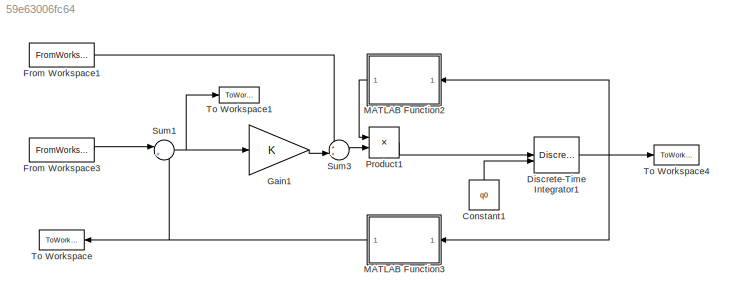
MODEL slx_59e63006fc64
KIND model
CONFIG AbsTol = 1e-6
CONFIG EnableMultiTasking = off
CONFIG FixedStep = 0.001
CONFIG MaxStep = 0.001
CONFIG MinStep = auto
CONFIG RelTol = 1e-6
CONFIG SampleTimeConstraint = Unconstrained
CONFIG SolverName = ode1
CONFIG StartTime = 0.0
CONFIG StopTime = 50
BLOCK [Constant] Constant1
  NameLocation = right
  Value = q0
BLOCK [DiscreteIntegrator] Discrete-Time Integrator1
  ICPrevOutput = DiscIntNeverNeededParam
  ICPrevScaledInput = DiscIntNeverNeededParam
  InitialCondition = q0
  InitialConditionSetting = Auto
  InitialConditionSource = external
  SampleTime = Tc
BLOCK [FromWorkspace] From Workspace1
  SampleTime = Tc
  VariableName = xddot
BLOCK [FromWorkspace] From Workspace3
  SampleTime = Tc
  VariableName = xd
BLOCK [Gain] Gain1
  Gain = K
  Multiplication = Matrix(K*u) (u vector)
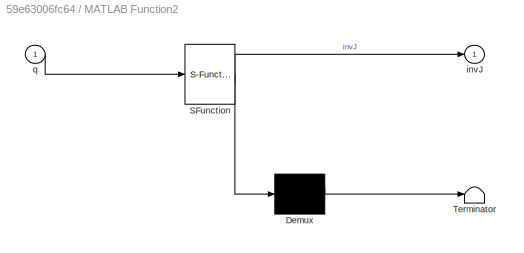
BLOCK [SubSystem] MATLAB Function2
  ErrorFcn = Stateflow.Translate.translate
  NameLocation = top
  PermitHierarchicalResolution = ExplicitOnly
  SFBlockType = MATLAB Function
  TreatAsAtomicUnit = on
BLOCK [Demux] MATLAB Function2/ Demux 
  Outputs = 1
BLOCK [S-Function] MATLAB Function2/ SFunction 
  EnableBusSupport = on
  FunctionName = sf_sfun
  PortCounts = [1 2]
  SFcnIsStateOwnerBlock = off
  SFunctionDeploymentMode = off
  Tag = Stateflow S-Function 3
BLOCK [Terminator] MATLAB Function2/ Terminator 
BLOCK [Outport] MATLAB Function2/invJ
BLOCK [Inport] MATLAB Function2/q
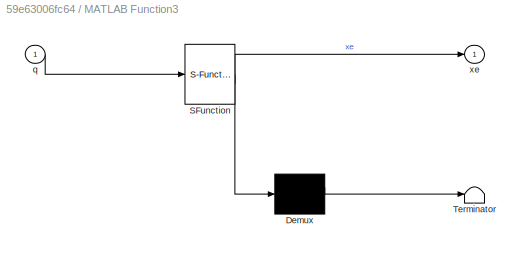
BLOCK [SubSystem] MATLAB Function3
  ErrorFcn = Stateflow.Translate.translate
  NameLocation = top
  PermitHierarchicalResolution = ExplicitOnly
  SFBlockType = MATLAB Function
  TreatAsAtomicUnit = on
BLOCK [Demux] MATLAB Function3/ Demux 
  Outputs = 1
BLOCK [S-Function] MATLAB Function3/ SFunction 
  EnableBusSupport = on
  FunctionName = sf_sfun
  PortCounts = [1 2]
  SFcnIsStateOwnerBlock = off
  SFunctionDeploymentMode = off
  Tag = Stateflow S-Function 4
BLOCK [Terminator] MATLAB Function3/ Terminator 
BLOCK [Inport] MATLAB Function3/q
BLOCK [Outport] MATLAB Function3/xe
BLOCK [Product] Product1
  Multiplication = Matrix(*)
BLOCK [Sum] Sum1
  Inputs = |+-
BLOCK [Sum] Sum3
  Inputs = ++|
BLOCK [ToWorkspace] To Workspace
  FixptAsFi = on
  MaxDataPoints = inf
  SampleTime = -1
  SaveFormat = Timeseries
  VariableName = xe
BLOCK [ToWorkspace] To Workspace1
  FixptAsFi = on
  MaxDataPoints = inf
  SampleTime = -1
  SaveFormat = Timeseries
  VariableName = e
BLOCK [ToWorkspace] To Workspace4
  FixptAsFi = on
  MaxDataPoints = inf
  SampleTime = -1
  SaveFormat = Timeseries
  VariableName = q
LINE Constant1:1 -> Discrete-Time Integrator1:2
NET Discrete-Time Integrator1:1 -> MATLAB Function2:1, MATLAB Function3:1, To Workspace4:1
LINE From Workspace1:1 -> Sum3:1
LINE From Workspace3:1 -> Sum1:1
LINE Gain1:1 -> Sum3:2
LINE MATLAB Function2:1 -> Product1:1
NET MATLAB Function3:1 -> Sum1:2, To Workspace:1
LINE Product1:1 -> Discrete-Time Integrator1:1
NET Sum1:1 -> Gain1:1, To Workspace1:1
LINE Sum3:1 -> Product1:2
note: NET lines group one-source signal fan-out (src -> all destinations, sorted); 1:1 wires keep LINE
CHART MATLAB Function3 states=1 transitions=1
  STATE_LABEL 'eML_blk_kernel()'
  STATE_LABEL 'SCRIPT:\nfunction xe = dirkin(q)\n\na1 = 0.5;\na2 = 0.5;\nd0 = 1;\n\n\nxe = [a1*cos(q(1))+a2*cos(q(1)+q(2));\n      a1*sin(q(1))+a2*sin(q(1)+q(2));\n      d0+q(3);\n      q(1)+q(2)+q(4)];\n\nend'
CHART MATLAB Function2 states=1 transitions=1
  STATE_LABEL 'eML_blk_kernel()'
  STATE_LABEL 'SCRIPT:\nfunction invJ=inversione(q)\n\na1 = 0.5;\na2 = 0.5;\n\nJ = [-a1*sin(q(1))-a2*sin(q(1)+q(2)) -a2*sin(q(1)+q(2)) 0 0;\n      a1*cos(q(1))+a2*cos(q(1)+q(2))  a2*cos(q(1)+q(2)) 0 0;\n                     0                         0        1 0;\n                     1                         1        0 1];\n\ninvJ = pinv(J);\n\nend'
CHART  states=0 transitions=0
CHART  states=0 transitions=0
